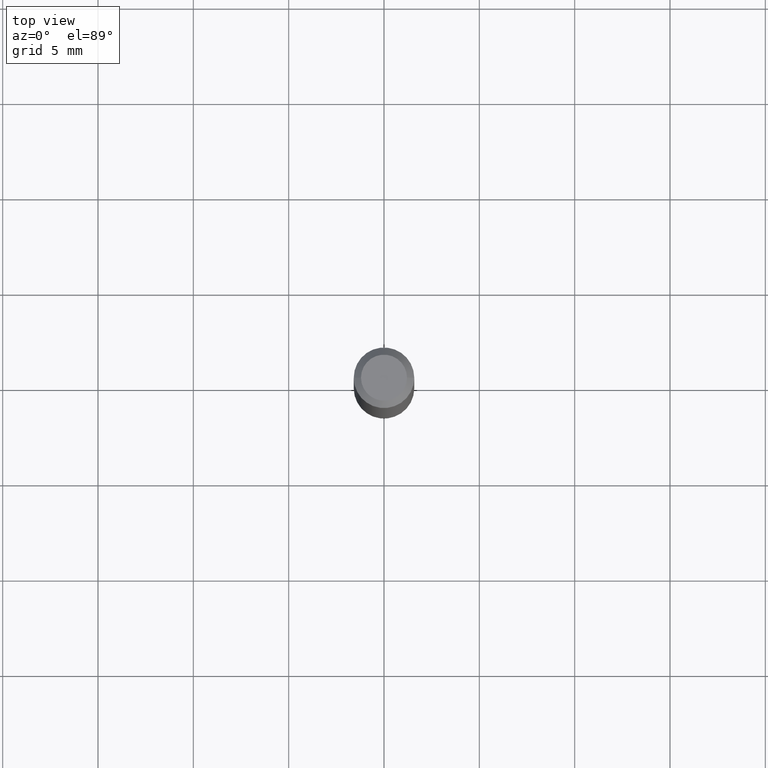
[diagram: clean part render]
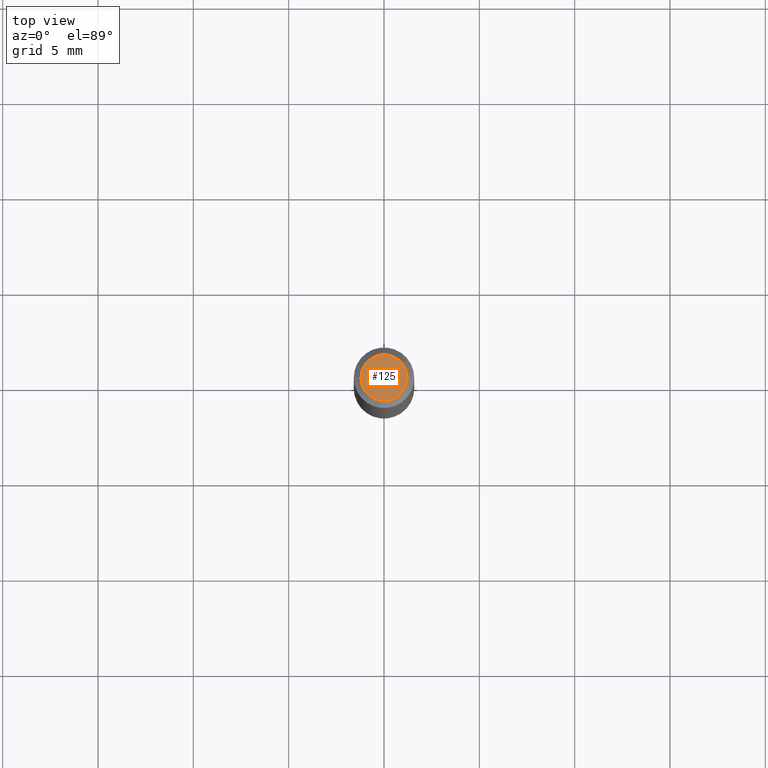
[diagram: same view with one face highlighted and labeled with its STEP entity id]
A machine part, top view. The second image highlights one B-rep face of the part: STEP entity #125.
In plain terms, the highlighted planar face has unit normal (0, -0, -1).
Its self-contained STEP definition (entity closure, byte-faithful):
#11 = CIRCLE ( 'NONE', #360, 0.04749999999999999362 ) ;
#76 = EDGE_LOOP ( 'NONE', ( #237, #286 ) ) ;
#78 = AXIS2_PLACEMENT_3D ( 'NONE', #391, #426, #393 ) ;
#88 = VERTEX_POINT ( 'NONE', #228 ) ;
#125 = ADVANCED_FACE ( 'NONE', ( #243 ), #418, .F. ) ;
#128 = DIRECTION ( 'NONE',  ( 2.438088387897960049E-29, -3.491481338843145188E-15, -1.000000000000000000 ) ) ;
#131 = AXIS2_PLACEMENT_3D ( 'NONE', #446, #128, #456 ) ;
#143 = DIRECTION ( 'NONE',  ( -2.445468806185136597E-29, 3.491481338843145583E-15, 1.000000000000000000 ) ) ;
#228 = CARTESIAN_POINT ( 'NONE',  ( 0.04749999999999999362, -4.035134999187572707E-16, 3.292288316969910130E-16 ) ) ;
#237 = ORIENTED_EDGE ( 'NONE', *, *, #441, .T. ) ;
#243 = FACE_OUTER_BOUND ( 'NONE', #76, .T. ) ;
#286 = ORIENTED_EDGE ( 'NONE', *, *, #341, .T. ) ;
#289 = CIRCLE ( 'NONE', #78, 0.04749999999999999362 ) ;
#293 = DIRECTION ( 'NONE',  ( 1.000000000000000000, -6.982962677686267499E-15, 4.852736867747366768E-29 ) ) ;
#327 = CARTESIAN_POINT ( 'NONE',  ( -0.04749999999999999362, 3.578768372314216422E-16, 3.292288316969860333E-16 ) ) ;
#341 = EDGE_CURVE ( 'NONE', #88, #453, #289, .T. ) ;
#360 = AXIS2_PLACEMENT_3D ( 'NONE', #463, #143, #293 ) ;
#391 = CARTESIAN_POINT ( 'NONE',  ( -8.051188380117617343E-45, 1.149496322079166104E-30, 3.292288316969884985E-16 ) ) ;
#393 = DIRECTION ( 'NONE',  ( 1.000000000000000000, -6.982962677686267499E-15, 4.852736867747366768E-29 ) ) ;
#418 = PLANE ( 'NONE',  #131 ) ;
#426 = DIRECTION ( 'NONE',  ( -2.445468806185136597E-29, 3.491481338843145583E-15, 1.000000000000000000 ) ) ;
#441 = EDGE_CURVE ( 'NONE', #453, #88, #11, .T. ) ;
#446 = CARTESIAN_POINT ( 'NONE',  ( 3.316907271900976096E-16, 0.04749999999999999362, -1.230947746555162994E-18 ) ) ;
#453 = VERTEX_POINT ( 'NONE', #327 ) ;
#456 = DIRECTION ( 'NONE',  ( -1.000000000000000000, 6.982962677686265922E-15, -4.876176775795935793E-29 ) ) ;
#463 = CARTESIAN_POINT ( 'NONE',  ( -8.051188380117617343E-45, 1.149496322079166104E-30, 3.292288316969884985E-16 ) ) ;